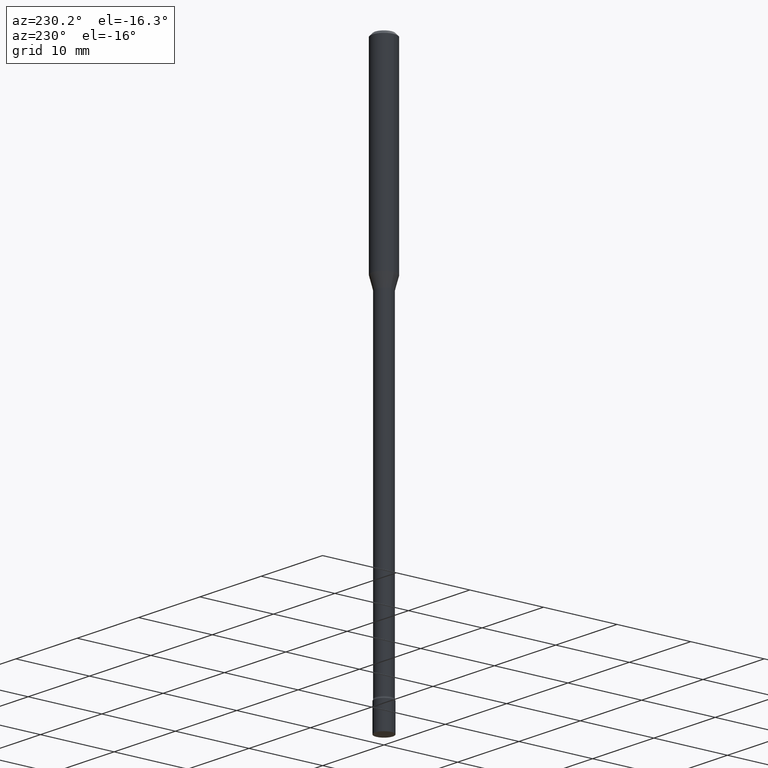
[diagram: clean part render]
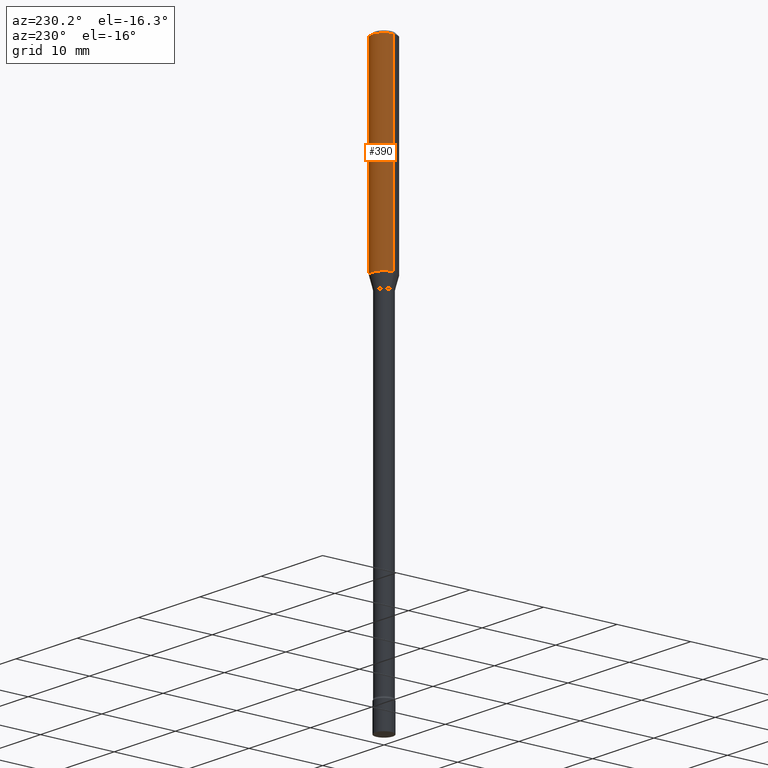
[diagram: same view with one face highlighted and labeled with its STEP entity id]
A machine part, auxiliary view. The second image highlights one B-rep face of the part: STEP entity #390.
In plain terms, the highlighted cylindrical surface (edge-blend (fillet) strip) has radius 1.5875 mm, axis along (-0, 0, 1).
Its self-contained STEP definition (entity closure, byte-faithful):
#1 = DIRECTION ( 'NONE',  ( -2.445468806185136597E-29, 3.491481338843145583E-15, 1.000000000000000000 ) ) ;
#11 = EDGE_CURVE ( 'NONE', #317, #144, #256, .T. ) ;
#12 = DIRECTION ( 'NONE',  ( 1.000000000000000000, -6.982962677686262766E-15, 0.000000000000000000 ) ) ;
#27 = CARTESIAN_POINT ( 'NONE',  ( 0.06250000000000000000, -4.364351673553916694E-16, 3.047610484872459871E-30 ) ) ;
#53 = VERTEX_POINT ( 'NONE', #248 ) ;
#90 = CIRCLE ( 'NONE', #325, 0.06250000000000000000 ) ;
#91 = CARTESIAN_POINT ( 'NONE',  ( 2.527105629884462696E-29, -3.608037087085655823E-15, -1.033382893084895837 ) ) ;
#93 = EDGE_CURVE ( 'NONE', #53, #317, #479, .T. ) ;
#124 = FACE_OUTER_BOUND ( 'NONE', #133, .T. ) ;
#133 = EDGE_LOOP ( 'NONE', ( #242, #520, #250, #197 ) ) ;
#140 = DIRECTION ( 'NONE',  ( -2.445468806185136877E-29, 3.491481338843145188E-15, 1.000000000000000000 ) ) ;
#144 = VERTEX_POINT ( 'NONE', #211 ) ;
#161 = CARTESIAN_POINT ( 'NONE',  ( 3.668203209277712094E-31, -5.237222008264728876E-17, -0.01500000000000003067 ) ) ;
#197 = ORIENTED_EDGE ( 'NONE', *, *, #315, .F. ) ;
#208 = VERTEX_POINT ( 'NONE', #231 ) ;
#211 = CARTESIAN_POINT ( 'NONE',  ( -0.06250000000000000000, -1.386115443734088835E-15, -0.01500000000000003067 ) ) ;
#231 = CARTESIAN_POINT ( 'NONE',  ( 0.06250000000000000000, -4.888073874380389458E-16, -0.01500000000000003067 ) ) ;
#241 = CYLINDRICAL_SURFACE ( 'NONE', #360, 0.06250000000000000000 ) ;
#242 = ORIENTED_EDGE ( 'NONE', *, *, #93, .T. ) ;
#248 = CARTESIAN_POINT ( 'NONE',  ( 0.06250000000000000000, -4.044472254441047492E-15, -1.033382893084895837 ) ) ;
#250 = ORIENTED_EDGE ( 'NONE', *, *, #394, .F. ) ;
#256 = LINE ( 'NONE', #413, #367 ) ;
#287 = CARTESIAN_POINT ( 'NONE',  ( 0.000000000000000000, 0.000000000000000000, 0.000000000000000000 ) ) ;
#315 = EDGE_CURVE ( 'NONE', #53, #208, #384, .T. ) ;
#317 = VERTEX_POINT ( 'NONE', #349 ) ;
#318 = DIRECTION ( 'NONE',  ( 1.000000000000000000, -6.982962677686266711E-15, 0.000000000000000000 ) ) ;
#325 = AXIS2_PLACEMENT_3D ( 'NONE', #161, #1, #318 ) ;
#349 = CARTESIAN_POINT ( 'NONE',  ( -0.06250000000000000000, -3.163947877235593601E-15, -1.033382893084895837 ) ) ;
#351 = DIRECTION ( 'NONE',  ( -2.445468806185136877E-29, 3.491481338843145188E-15, 1.000000000000000000 ) ) ;
#359 = DIRECTION ( 'NONE',  ( 1.000000000000000000, -6.982962677686266711E-15, 4.876176775795935793E-29 ) ) ;
#360 = AXIS2_PLACEMENT_3D ( 'NONE', #287, #400, #359 ) ;
#367 = VECTOR ( 'NONE', #140, 39.37007874015748143 ) ;
#384 = LINE ( 'NONE', #27, #486 ) ;
#390 = ADVANCED_FACE ( 'NONE', ( #124 ), #241, .T. ) ;
#394 = EDGE_CURVE ( 'NONE', #208, #144, #90, .T. ) ;
#400 = DIRECTION ( 'NONE',  ( -2.445468806185136597E-29, 3.491481338843145583E-15, 1.000000000000000000 ) ) ;
#413 = CARTESIAN_POINT ( 'NONE',  ( -0.06250000000000000000, 4.440892098500626162E-16, -3.074334431409316114E-30 ) ) ;
#452 = DIRECTION ( 'NONE',  ( -2.445468806185136597E-29, 3.491481338843145583E-15, 1.000000000000000000 ) ) ;
#478 = AXIS2_PLACEMENT_3D ( 'NONE', #91, #452, #12 ) ;
#479 = CIRCLE ( 'NONE', #478, 0.06250000000000000000 ) ;
#486 = VECTOR ( 'NONE', #351, 39.37007874015748143 ) ;
#520 = ORIENTED_EDGE ( 'NONE', *, *, #11, .T. ) ;